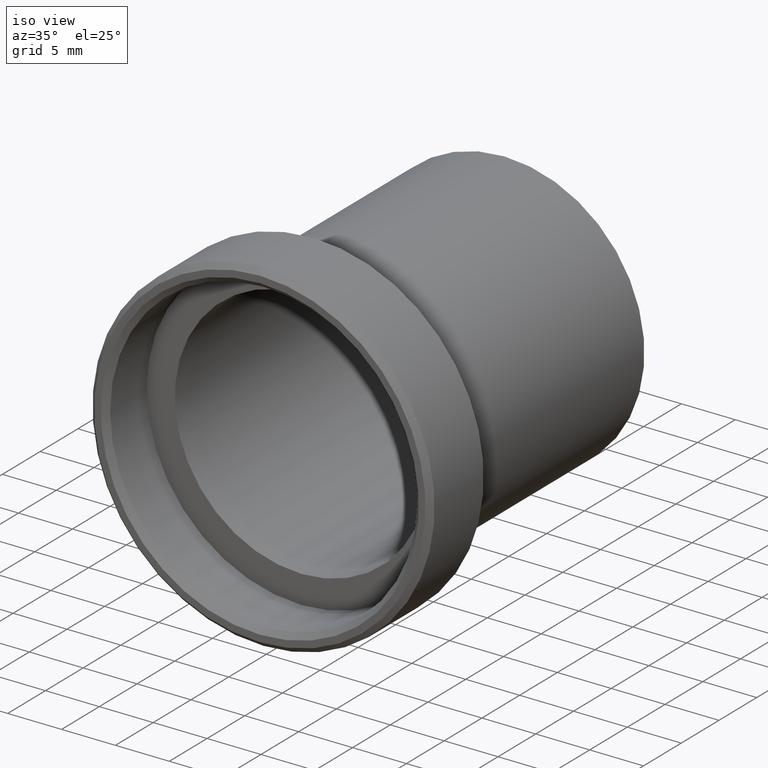
[diagram: clean part render]
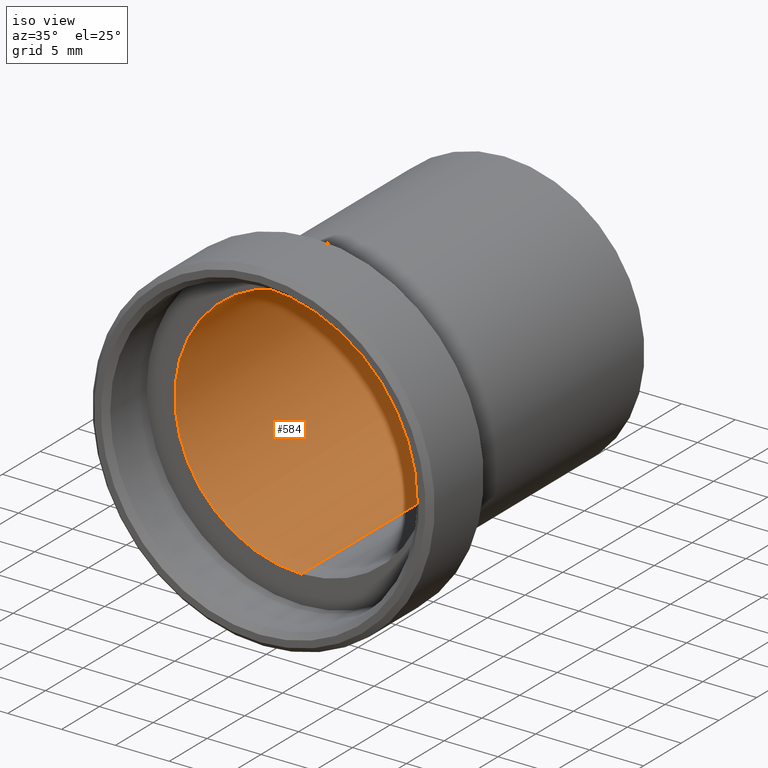
[diagram: same view with one face highlighted and labeled with its STEP entity id]
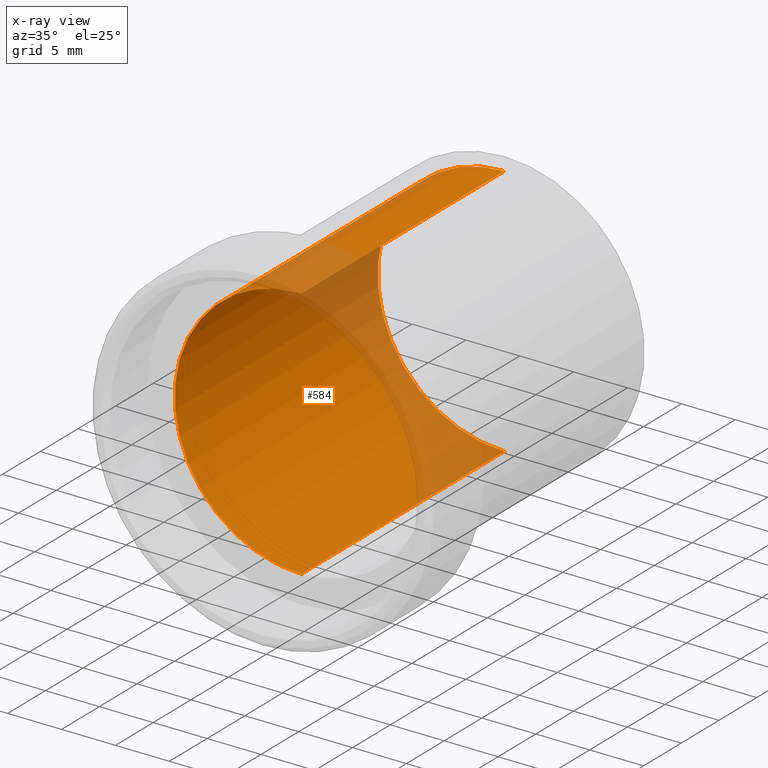
[diagram: x-ray of the same camera — body ghosted, the highlighted face saturated]
A machine part, iso view. The second image highlights one B-rep face of the part: STEP entity #584.
The next image is the same camera in x-ray: the body ghosted, the highlighted face saturated — about 22% of this face is hidden behind the body in this view.
In plain terms, the highlighted cylindrical surface (partial cylindrical patch) has radius 11.75 mm, axis along (-0, 1, -0).
Its self-contained STEP definition (entity closure, byte-faithful):
#1 = DIRECTION ( 'NONE',  ( -0.0000000000000000000, 1.000000000000000000, -0.0000000000000000000 ) ) ;
#2 = ORIENTED_EDGE ( 'NONE', *, *, #594, .T. ) ;
#4 = EDGE_LOOP ( 'NONE', ( #743, #340, #2, #622 ) ) ;
#13 = CARTESIAN_POINT ( 'NONE',  ( 1.469576158976824500E-015, 26.54285417456689400, -11.75000000000000500 ) ) ;
#16 = DIRECTION ( 'NONE',  ( -0.0000000000000000000, 1.000000000000000000, -0.0000000000000000000 ) ) ;
#24 = DIRECTION ( 'NONE',  ( 0.0000000000000000000, 0.0000000000000000000, 1.000000000000000000 ) ) ;
#52 = EDGE_CURVE ( 'NONE', #189, #633, #71, .T. ) ;
#71 = LINE ( 'NONE', #844, #228 ) ;
#77 = AXIS2_PLACEMENT_3D ( 'NONE', #280, #1, #553 ) ;
#85 = CARTESIAN_POINT ( 'NONE',  ( 1.438959988998140800E-015, 44.59859774529311900, -11.75000000000000500 ) ) ;
#115 = FACE_OUTER_BOUND ( 'NONE', #4, .T. ) ;
#189 = VERTEX_POINT ( 'NONE', #530 ) ;
#228 = VECTOR ( 'NONE', #16, 1000.000000000000000 ) ;
#254 = CYLINDRICAL_SURFACE ( 'NONE', #77, 11.75000000000000500 ) ;
#280 = CARTESIAN_POINT ( 'NONE',  ( 0.0000000000000000000, 44.59859774529311900, 0.0000000000000000000 ) ) ;
#316 = VECTOR ( 'NONE', #767, 1000.000000000000000 ) ;
#334 = CARTESIAN_POINT ( 'NONE',  ( 1.438959988998140800E-015, -0.3571458254331069700, -11.75000000000000500 ) ) ;
#340 = ORIENTED_EDGE ( 'NONE', *, *, #732, .T. ) ;
#360 = AXIS2_PLACEMENT_3D ( 'NONE', #690, #758, #834 ) ;
#444 = CIRCLE ( 'NONE', #509, 11.75000000000000500 ) ;
#476 = CARTESIAN_POINT ( 'NONE',  ( 0.0000000000000000000, 26.54285417456689400, 11.75000000000000500 ) ) ;
#498 = LINE ( 'NONE', #85, #316 ) ;
#506 = VERTEX_POINT ( 'NONE', #334 ) ;
#509 = AXIS2_PLACEMENT_3D ( 'NONE', #513, #575, #24 ) ;
#513 = CARTESIAN_POINT ( 'NONE',  ( 0.0000000000000000000, -0.3571458254331069700, 0.0000000000000000000 ) ) ;
#530 = CARTESIAN_POINT ( 'NONE',  ( 0.0000000000000000000, -0.3571458254331069700, 11.75000000000000500 ) ) ;
#553 = DIRECTION ( 'NONE',  ( 0.0000000000000000000, 0.0000000000000000000, 1.000000000000000000 ) ) ;
#575 = DIRECTION ( 'NONE',  ( -0.0000000000000000000, 1.000000000000000000, -0.0000000000000000000 ) ) ;
#584 = ADVANCED_FACE ( 'NONE', ( #115 ), #254, .F. ) ;
#594 = EDGE_CURVE ( 'NONE', #606, #633, #710, .T. ) ;
#606 = VERTEX_POINT ( 'NONE', #13 ) ;
#622 = ORIENTED_EDGE ( 'NONE', *, *, #52, .F. ) ;
#633 = VERTEX_POINT ( 'NONE', #476 ) ;
#690 = CARTESIAN_POINT ( 'NONE',  ( 0.0000000000000000000, 26.54285417456689400, 0.0000000000000000000 ) ) ;
#710 = CIRCLE ( 'NONE', #360, 11.75000000000000500 ) ;
#732 = EDGE_CURVE ( 'NONE', #506, #606, #498, .T. ) ;
#743 = ORIENTED_EDGE ( 'NONE', *, *, #897, .F. ) ;
#758 = DIRECTION ( 'NONE',  ( -0.0000000000000000000, 1.000000000000000000, -0.0000000000000000000 ) ) ;
#767 = DIRECTION ( 'NONE',  ( -0.0000000000000000000, 1.000000000000000000, -0.0000000000000000000 ) ) ;
#834 = DIRECTION ( 'NONE',  ( 0.0000000000000000000, 0.0000000000000000000, 1.000000000000000000 ) ) ;
#844 = CARTESIAN_POINT ( 'NONE',  ( 0.0000000000000000000, 44.59859774529311900, 11.75000000000000500 ) ) ;
#897 = EDGE_CURVE ( 'NONE', #506, #189, #444, .T. ) ;